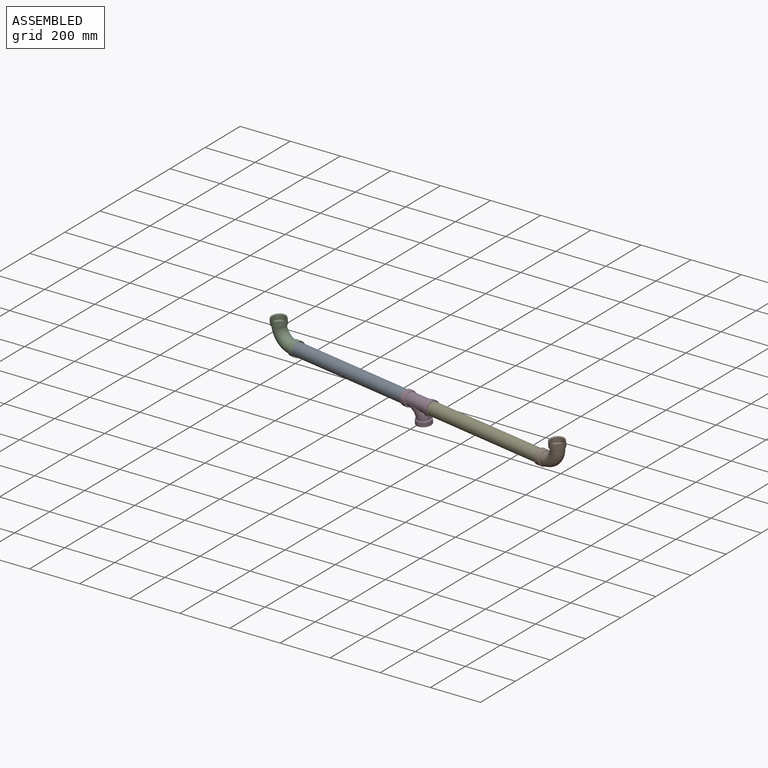
[diagram: assembled view]
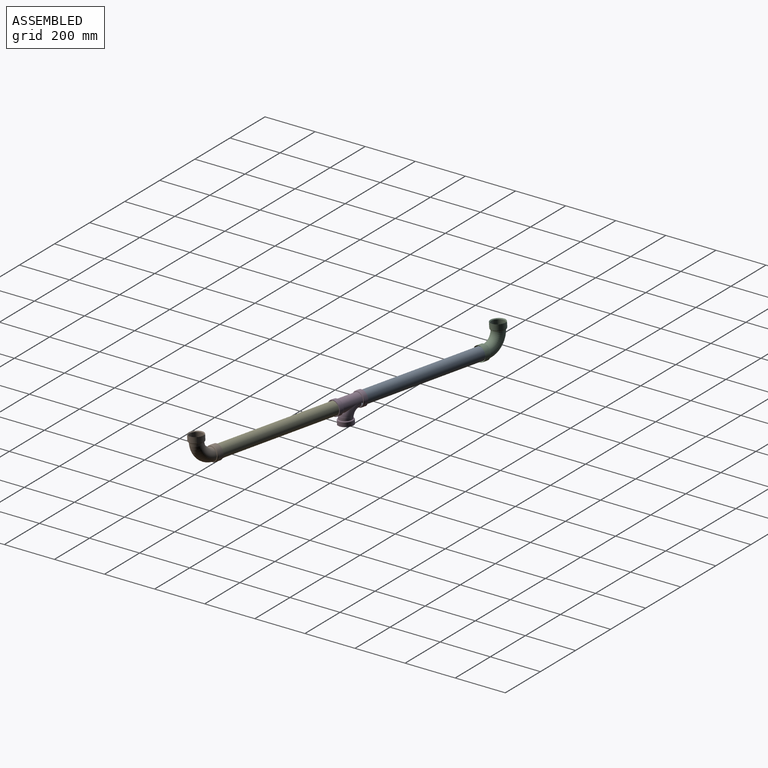
[diagram: assembled view, second angle]
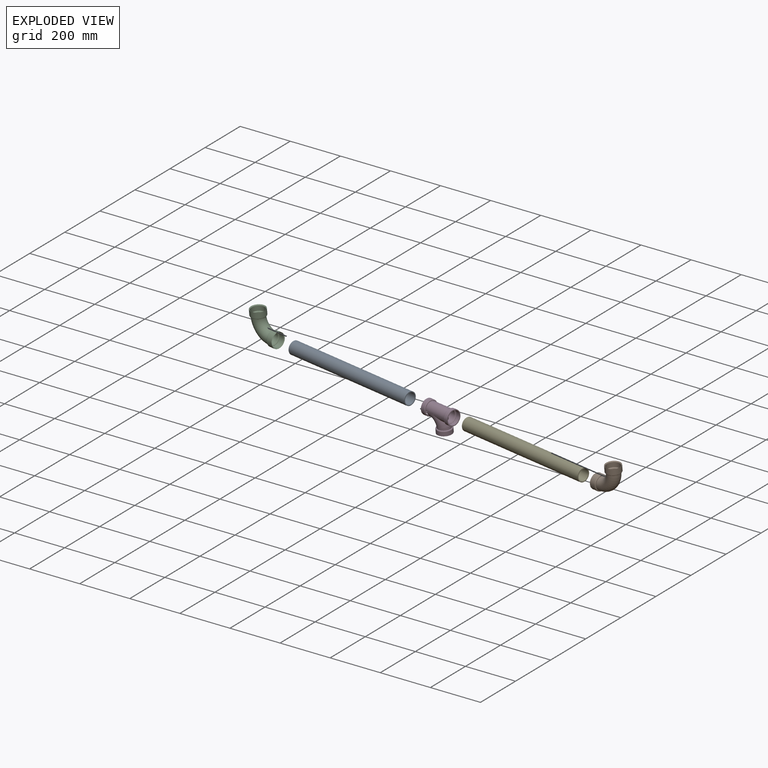
[diagram: exploded view]
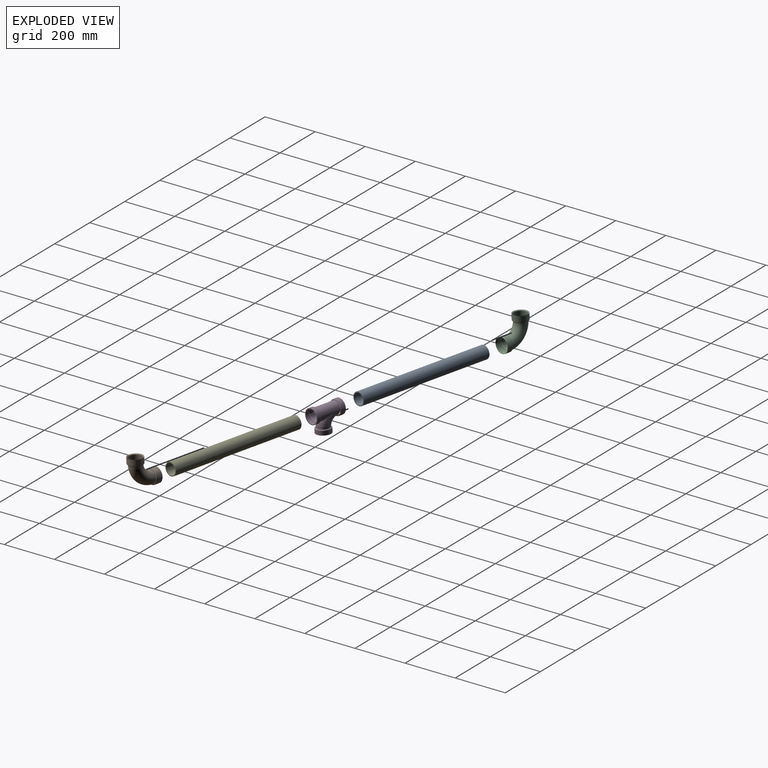
[diagram: exploded view, second angle]
ASSEMBLY  parts=5 mates=4
PART A: 4 faces, bbox 558.8x50.8x50.8 mm
  f0: plane 50.8x50.8mm, normal (-1,0,0), area 475mm2, adj f2,f3
  f1: plane 50.8x50.8mm, normal (1,0,0), area 475mm2, adj f2,f3
  f2: cylinder r=25.4mm len=558.8mm, axis (1,0,0), area 89180.5mm2, adj f0,f1
  f3: cylinder r=22.23mm len=558.8mm, axis (1,0,0), area 78033mm2, adj f0,f1
PART B: 18 faces, bbox 121.6x64.1x121.6 mm
  f0: torus R=63.5mm, axis (0,1,0), area 15918.7mm2, adj f3,f6
  f1: cylinder r=29.59mm len=59.18mm, axis (-1,0,0), area 4132.2mm2, adj f2,f17
  f2: plane 59.18x59.18mm, normal (1,0,0), area 21.4mm2, adj f1,f13
  f3: plane 52.83x52.83mm, normal (-1,0,0), area 165.4mm2, adj f0,f17
  f4: cylinder r=29.59mm len=59.18mm, axis (0,0,1), area 4132.2mm2, adj f5,f16
  f5: plane 59.18x59.18mm, normal (0,0,-1), area 21.4mm2, adj f4,f12
  f6: plane 52.83x52.83mm, normal (0,0,1), area 165.4mm2, adj f0,f16
  f7: torus R=63.5mm, axis (0,1,0), area 13978mm2, adj f14,f15
  f8: cylinder r=26.42mm len=52.83mm, axis (-1,0,0), area 3181mm2, adj f9,f13
  f9: plane 52.85x52.85mm, normal (1,0,0), area 183.5mm2, adj f8,f15
  f10: cylinder r=26.42mm len=52.83mm, axis (0,0,1), area 3181mm2, adj f11,f12
  f11: plane 52.85x52.85mm, normal (0,0,-1), area 183.2mm2, adj f10,f14
  f12: cone r=26.42mm half-angle=45deg, axis (0,0,-1), area 759.7mm2, adj f5,f10
  f13: cone r=26.42mm half-angle=45deg, axis (1,0,0), area 759.7mm2, adj f2,f8
  f14: bspline ~50.57x50.57mm, area 646.7mm2, adj f7,f11
  f15: bspline ~50.57x50.57mm, area 645.7mm2, adj f7,f9
  f16: torus R=26.42mm, axis (0,0,-1), area 891.1mm2, adj f4,f6
  f17: torus R=26.42mm, axis (1,0,0), area 891.1mm2, adj f1,f3
PART C: same geometry as B
PART D: 25 faces, bbox 64.1x101.9x127 mm
  f0: cylinder r=25.4mm len=88.9mm, axis (0,0,-1), area 9815.3mm2, adj f1,f4,f7
  f1: torus R=50.8mm, axis (1,0,0), area 7374.7mm2, adj f0,f10
  f2: cylinder r=29.59mm len=59.18mm, axis (0,0,1), area 2951.6mm2, adj f3,f24
  f3: plane 59.18x59.18mm, normal (0,0,-1), area 558.6mm2, adj f2,f13
  f4: plane 52.83x52.83mm, normal (0,0,1), area 165.4mm2, adj f0,f24
  f5: cylinder r=29.59mm len=59.18mm, axis (0,0,-1), area 2951.6mm2, adj f6,f23
  f6: plane 59.18x59.18mm, normal (0,0,1), area 558.6mm2, adj f5,f15
  f7: plane 52.83x52.83mm, normal (0,0,-1), area 165.4mm2, adj f0,f23
  f8: cylinder r=29.59mm len=59.18mm, axis (0,-1,0), area 2951.6mm2, adj f9,f22
  f9: plane 59.18x59.18mm, normal (0,1,0), area 558.6mm2, adj f8,f17
  f10: plane 52.83x52.83mm, normal (0,-1,0), area 165.4mm2, adj f1,f22
  f11: cylinder r=22.23mm len=88.9mm, axis (0,0,-1), area 8835.5mm2, adj f12,f20,f21
  f12: torus R=50.8mm, axis (1,0,0), area 6850mm2, adj f11,f19
  f13: cylinder r=26.42mm len=52.83mm, axis (0,0,1), area 2634.9mm2, adj f3,f14
  f14: plane 52.83x52.83mm, normal (0,0,-1), area 165.4mm2, adj f13,f20
  f15: cylinder r=26.42mm len=52.83mm, axis (0,0,-1), area 2634.9mm2, adj f6,f16
  f16: plane 52.83x52.83mm, normal (0,0,1), area 165.4mm2, adj f15,f21
  f17: cylinder r=26.42mm len=52.83mm, axis (0,-1,0), area 2634.9mm2, adj f9,f18
  f18: plane 52.84x52.84mm, normal (0,1,0), area 165.6mm2, adj f17,f19
  f19: bspline ~50.8x50.8mm, area 671.8mm2, adj f12,f18
  f20: cone r=25.4mm half-angle=45deg, axis (0,0,-1), area 671.8mm2, adj f11,f14
  f21: cone r=22.23mm half-angle=45deg, axis (0,0,1), area 671.8mm2, adj f11,f16
  f22: torus R=26.42mm, axis (0,1,0), area 891.1mm2, adj f8,f10
  f23: torus R=26.42mm, axis (0,0,1), area 891.1mm2, adj f5,f7
  f24: torus R=26.42mm, axis (0,0,1), area 891.1mm2, adj f2,f4
PART E: same geometry as A
PLACE A rot(axis=(0.35,-0.1,-0.93),13.2deg) t=(-16.84,22.37,21.14)mm
PLACE B rot(axis=(0.11,0.99,0.04),178.7deg) t=(682.2,-135.6,93.91)mm
PLACE C rot(axis=(-0.99,0.11,-0.01),175.4deg) t=(-629.8,150.84,76.15)mm
PLACE D rot(axis=(-0.47,0.64,-0.61),124.1deg) t=(-13.74,21.69,21.18)mm fixed
PLACE E rot(axis=(-0.08,-0.73,0.68),172.2deg) t=(73.11,2.73,22.36)mm
MATE fastened D.f0 <-> A.f2  axis (-0.98,0.21,-0.01) through (-16.84,22.37,21.14)mm
MATE fastened C.f13 <-> A.f2  axis (0.98,-0.21,0.01) through (-562.73,141.55,13.75)mm
MATE fastened E.f2 <-> D.f0  axis (-0.98,0.21,-0.01) through (73.11,2.73,22.36)mm
MATE fastened E.f2 <-> B.f13  axis (-0.98,0.21,-0.01) through (619,-116.45,29.74)mm
